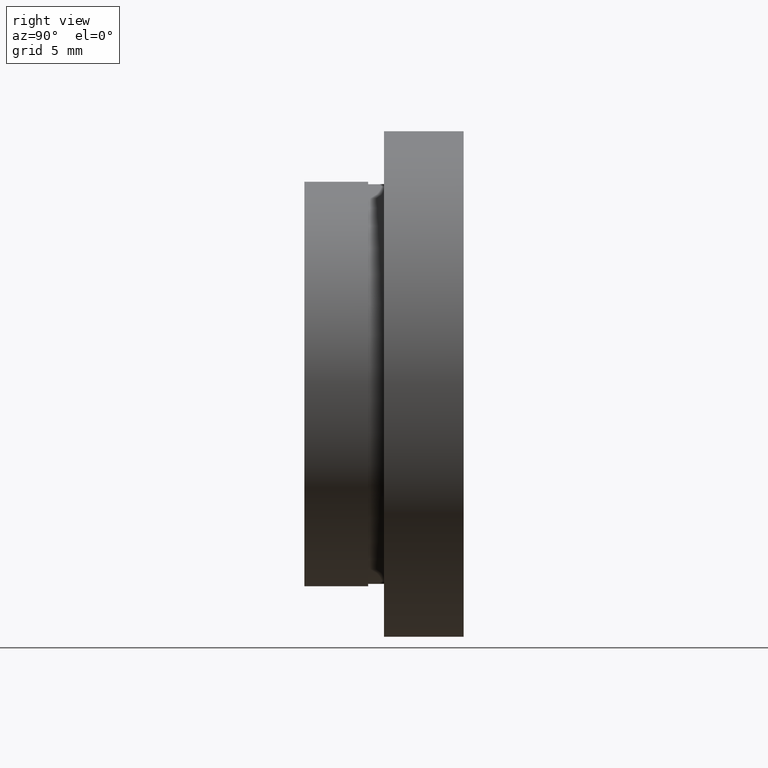
[diagram: clean part render]
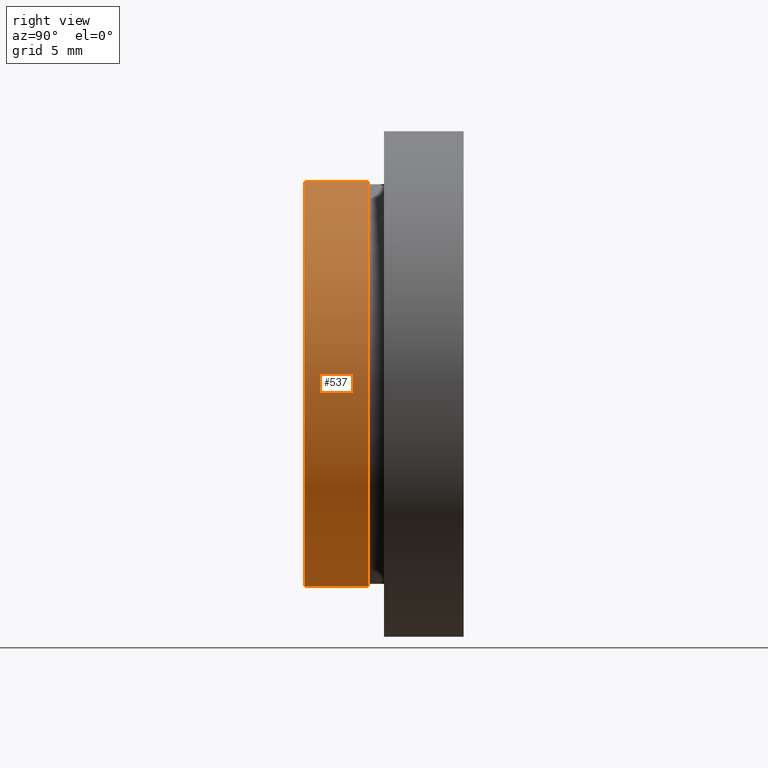
[diagram: same view with one face highlighted and labeled with its STEP entity id]
A machine part, right view. The second image highlights one B-rep face of the part: STEP entity #537.
In plain terms, the highlighted cylindrical surface (partial cylindrical patch) has radius 12.7 mm, axis along (-0, 1, -0).
Its self-contained STEP definition (entity closure, byte-faithful):
#2 = CARTESIAN_POINT ( 'NONE',  ( 0.0000000000000000000, 13.74468085106383300, 12.69999999999999900 ) ) ;
#24 = CARTESIAN_POINT ( 'NONE',  ( 0.0000000000000000000, 0.0000000000000000000, 12.69999999999999900 ) ) ;
#31 = EDGE_LOOP ( 'NONE', ( #67, #611, #545, #585 ) ) ;
#46 = DIRECTION ( 'NONE',  ( -0.0000000000000000000, 1.000000000000000000, -0.0000000000000000000 ) ) ;
#56 = VERTEX_POINT ( 'NONE', #487 ) ;
#61 = CARTESIAN_POINT ( 'NONE',  ( 1.555301434917138400E-015, 4.000000000000000000, -12.69999999999999900 ) ) ;
#62 = AXIS2_PLACEMENT_3D ( 'NONE', #221, #567, #274 ) ;
#67 = ORIENTED_EDGE ( 'NONE', *, *, #513, .T. ) ;
#68 = FACE_OUTER_BOUND ( 'NONE', #31, .T. ) ;
#93 = DIRECTION ( 'NONE',  ( 0.0000000000000000000, 0.0000000000000000000, 1.000000000000000000 ) ) ;
#123 = VECTOR ( 'NONE', #46, 1000.000000000000000 ) ;
#136 = EDGE_CURVE ( 'NONE', #287, #327, #366, .T. ) ;
#158 = CIRCLE ( 'NONE', #448, 12.69999999999999900 ) ;
#185 = DIRECTION ( 'NONE',  ( -0.0000000000000000000, 1.000000000000000000, -0.0000000000000000000 ) ) ;
#221 = CARTESIAN_POINT ( 'NONE',  ( 0.0000000000000000000, 0.0000000000000000000, 0.0000000000000000000 ) ) ;
#241 = DIRECTION ( 'NONE',  ( -0.0000000000000000000, 1.000000000000000000, -0.0000000000000000000 ) ) ;
#248 = CYLINDRICAL_SURFACE ( 'NONE', #386, 12.69999999999999900 ) ;
#274 = DIRECTION ( 'NONE',  ( 0.0000000000000000000, 0.0000000000000000000, 1.000000000000000000 ) ) ;
#279 = EDGE_CURVE ( 'NONE', #382, #56, #530, .T. ) ;
#287 = VERTEX_POINT ( 'NONE', #293 ) ;
#293 = CARTESIAN_POINT ( 'NONE',  ( 1.555301434917138400E-015, 0.0000000000000000000, -12.69999999999999900 ) ) ;
#320 = CARTESIAN_POINT ( 'NONE',  ( 0.0000000000000000000, 13.74468085106383300, 0.0000000000000000000 ) ) ;
#327 = VERTEX_POINT ( 'NONE', #61 ) ;
#366 = LINE ( 'NONE', #512, #463 ) ;
#382 = VERTEX_POINT ( 'NONE', #24 ) ;
#384 = CIRCLE ( 'NONE', #62, 12.69999999999999900 ) ;
#386 = AXIS2_PLACEMENT_3D ( 'NONE', #320, #241, #542 ) ;
#448 = AXIS2_PLACEMENT_3D ( 'NONE', #490, #584, #93 ) ;
#463 = VECTOR ( 'NONE', #185, 1000.000000000000000 ) ;
#487 = CARTESIAN_POINT ( 'NONE',  ( 0.0000000000000000000, 4.000000000000000000, 12.69999999999999900 ) ) ;
#490 = CARTESIAN_POINT ( 'NONE',  ( 0.0000000000000000000, 4.000000000000000000, 0.0000000000000000000 ) ) ;
#512 = CARTESIAN_POINT ( 'NONE',  ( 1.555301434917138400E-015, 13.74468085106383300, -12.69999999999999900 ) ) ;
#513 = EDGE_CURVE ( 'NONE', #382, #287, #384, .T. ) ;
#530 = LINE ( 'NONE', #2, #123 ) ;
#537 = ADVANCED_FACE ( 'NONE', ( #68 ), #248, .T. ) ;
#542 = DIRECTION ( 'NONE',  ( 0.0000000000000000000, 0.0000000000000000000, 1.000000000000000000 ) ) ;
#545 = ORIENTED_EDGE ( 'NONE', *, *, #595, .F. ) ;
#567 = DIRECTION ( 'NONE',  ( -0.0000000000000000000, 1.000000000000000000, -0.0000000000000000000 ) ) ;
#584 = DIRECTION ( 'NONE',  ( -0.0000000000000000000, 1.000000000000000000, -0.0000000000000000000 ) ) ;
#585 = ORIENTED_EDGE ( 'NONE', *, *, #279, .F. ) ;
#595 = EDGE_CURVE ( 'NONE', #56, #327, #158, .T. ) ;
#611 = ORIENTED_EDGE ( 'NONE', *, *, #136, .T. ) ;